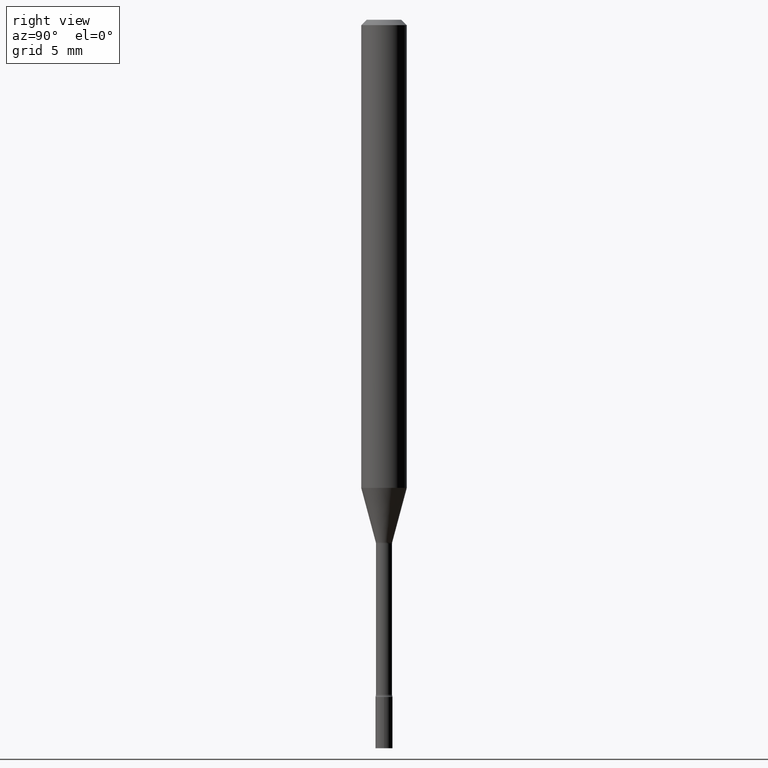
[diagram: clean part render]
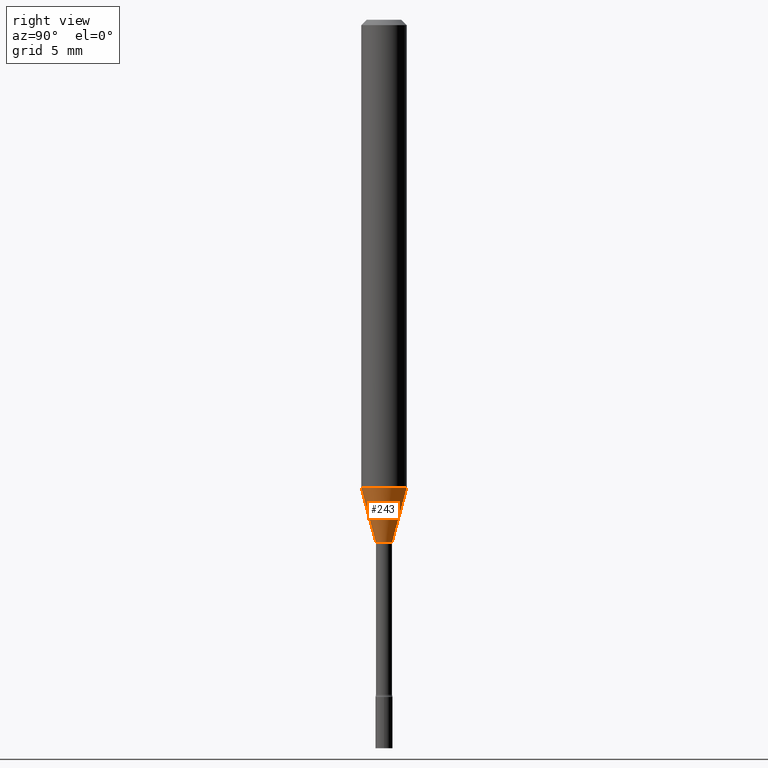
[diagram: same view with one face highlighted and labeled with its STEP entity id]
A machine part, right view. The second image highlights one B-rep face of the part: STEP entity #243.
In plain terms, the highlighted conical surface has half-angle 15 deg.
Its self-contained STEP definition (entity closure, byte-faithful):
#25 = DIRECTION ( 'NONE',  ( -6.982962677686265922E-15, -1.000000000000000000, 4.370956789862821150E-15 ) ) ;
#40 = EDGE_CURVE ( 'NONE', #217, #345, #483, .T. ) ;
#55 = CARTESIAN_POINT ( 'NONE',  ( 3.023754139721055453E-16, 0.02261111260565898395, -1.434092501787273211 ) ) ;
#59 = EDGE_CURVE ( 'NONE', #345, #340, #73, .T. ) ;
#63 = DIRECTION ( 'NONE',  ( -2.445449293867179788E-29, 3.491509281593031965E-15, 1.000000000000000000 ) ) ;
#73 = CIRCLE ( 'NONE', #426, 0.06250000000000000000 ) ;
#80 = DIRECTION ( 'NONE',  ( 1.839019923739599526E-15, 0.2588190451025248473, 0.9659258262890673130 ) ) ;
#81 = LINE ( 'NONE', #488, #323 ) ;
#83 = DIRECTION ( 'NONE',  ( -2.445449293867179788E-29, 3.491509281593031965E-15, 1.000000000000000000 ) ) ;
#95 = CARTESIAN_POINT ( 'NONE',  ( 3.507000495835905088E-29, -5.007147280653236604E-15, -1.434092501787273211 ) ) ;
#121 = CONICAL_SURFACE ( 'NONE', #142, 0.02261111260566398690, 0.2617993877991501295 ) ;
#132 = CARTESIAN_POINT ( 'NONE',  ( 4.440892098500937762E-16, 0.06249999999999548278, -1.285225147374218224 ) ) ;
#134 = VECTOR ( 'NONE', #429, 39.37007874015749564 ) ;
#142 = AXIS2_PLACEMENT_3D ( 'NONE', #95, #301, #298 ) ;
#149 = EDGE_CURVE ( 'NONE', #485, #340, #81, .T. ) ;
#161 = AXIS2_PLACEMENT_3D ( 'NONE', #329, #63, #414 ) ;
#180 = ORIENTED_EDGE ( 'NONE', *, *, #478, .T. ) ;
#183 = FACE_OUTER_BOUND ( 'NONE', #234, .T. ) ;
#202 = CIRCLE ( 'NONE', #161, 0.02261111260566398690 ) ;
#203 = CARTESIAN_POINT ( 'NONE',  ( 3.142952929106623298E-29, -4.487375530993854275E-15, -1.285225147374218002 ) ) ;
#211 = CARTESIAN_POINT ( 'NONE',  ( -1.578925554262780210E-16, -0.02261111260566899331, -1.434092501787273211 ) ) ;
#217 = VERTEX_POINT ( 'NONE', #211 ) ;
#234 = EDGE_LOOP ( 'NONE', ( #180, #269, #363, #314 ) ) ;
#238 = CARTESIAN_POINT ( 'NONE',  ( -1.578925554262780210E-16, -0.02261111260566899331, -1.434092501787273211 ) ) ;
#243 = ADVANCED_FACE ( 'NONE', ( #183 ), #121, .T. ) ;
#269 = ORIENTED_EDGE ( 'NONE', *, *, #149, .T. ) ;
#298 = DIRECTION ( 'NONE',  ( -6.982962677686265922E-15, -1.000000000000000000, 0.000000000000000000 ) ) ;
#301 = DIRECTION ( 'NONE',  ( -2.445449293867179788E-29, 3.491509281593031965E-15, 1.000000000000000000 ) ) ;
#314 = ORIENTED_EDGE ( 'NONE', *, *, #40, .F. ) ;
#323 = VECTOR ( 'NONE', #80, 39.37007874015747433 ) ;
#329 = CARTESIAN_POINT ( 'NONE',  ( 3.507000495835905088E-29, -5.007147280653236604E-15, -1.434092501787273211 ) ) ;
#340 = VERTEX_POINT ( 'NONE', #132 ) ;
#345 = VERTEX_POINT ( 'NONE', #380 ) ;
#363 = ORIENTED_EDGE ( 'NONE', *, *, #59, .F. ) ;
#380 = CARTESIAN_POINT ( 'NONE',  ( -4.364351673553603615E-16, -0.06250000000000451028, -1.285225147374217780 ) ) ;
#414 = DIRECTION ( 'NONE',  ( -6.982962677686265922E-15, -1.000000000000000000, 0.000000000000000000 ) ) ;
#426 = AXIS2_PLACEMENT_3D ( 'NONE', #203, #83, #25 ) ;
#429 = DIRECTION ( 'NONE',  ( -1.807323732225328562E-15, -0.2588190451025179639, 0.9659258262890689783 ) ) ;
#478 = EDGE_CURVE ( 'NONE', #217, #485, #202, .T. ) ;
#483 = LINE ( 'NONE', #238, #134 ) ;
#485 = VERTEX_POINT ( 'NONE', #55 ) ;
#488 = CARTESIAN_POINT ( 'NONE',  ( 1.606616180941167967E-16, 0.02261111260565898048, -1.434092501787273211 ) ) ;